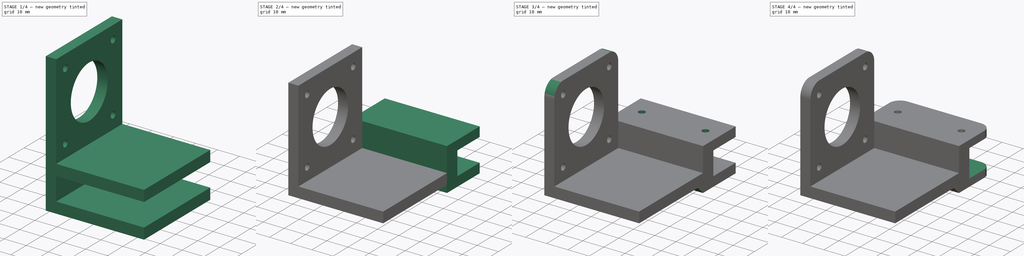
[diagram: build sequence overview — one tinted view per stage of 4, left to right]
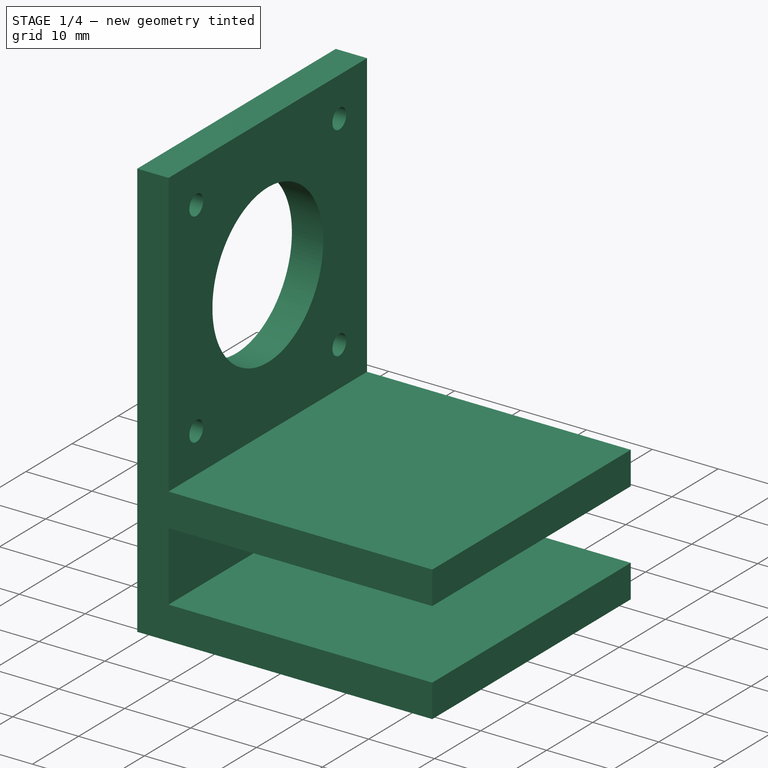
[diagram: stage 1 of 4 — iso view after this stage's code; geometry added in this stage tinted green]
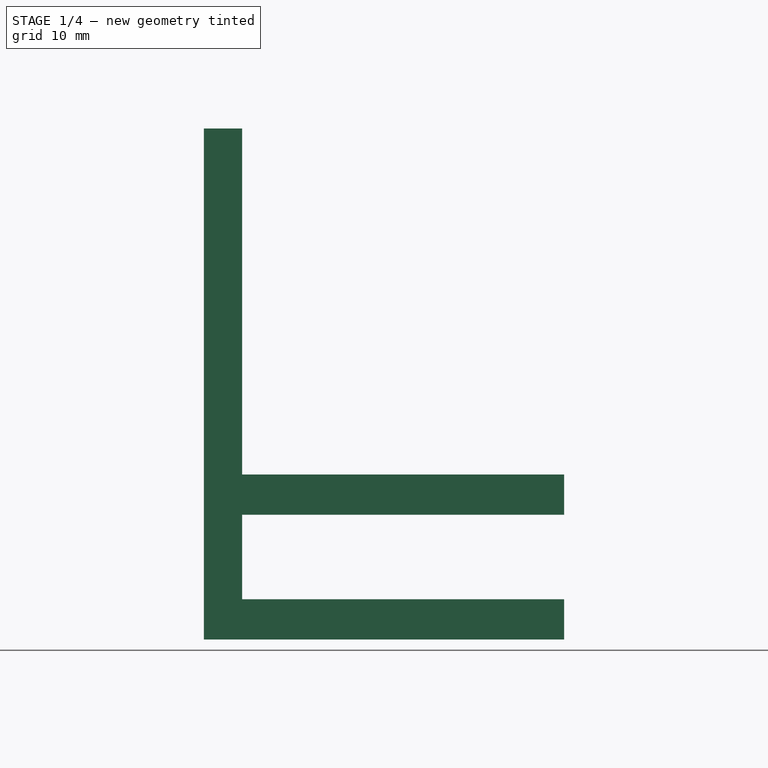
[diagram: stage 1 of 4 — front view after this stage's code; geometry added in this stage tinted green]
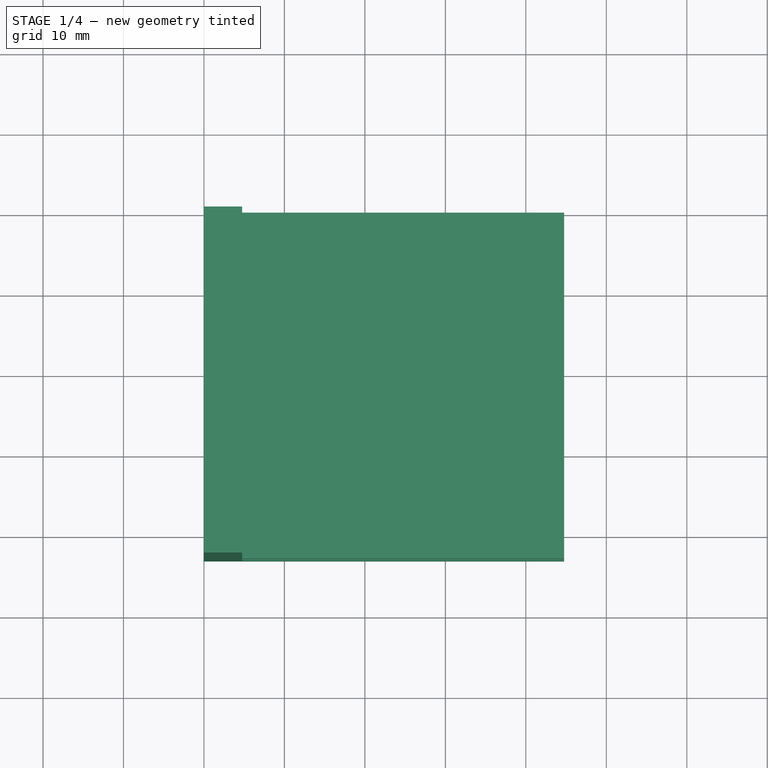
[diagram: stage 1 of 4 — top view after this stage's code; geometry added in this stage tinted green]
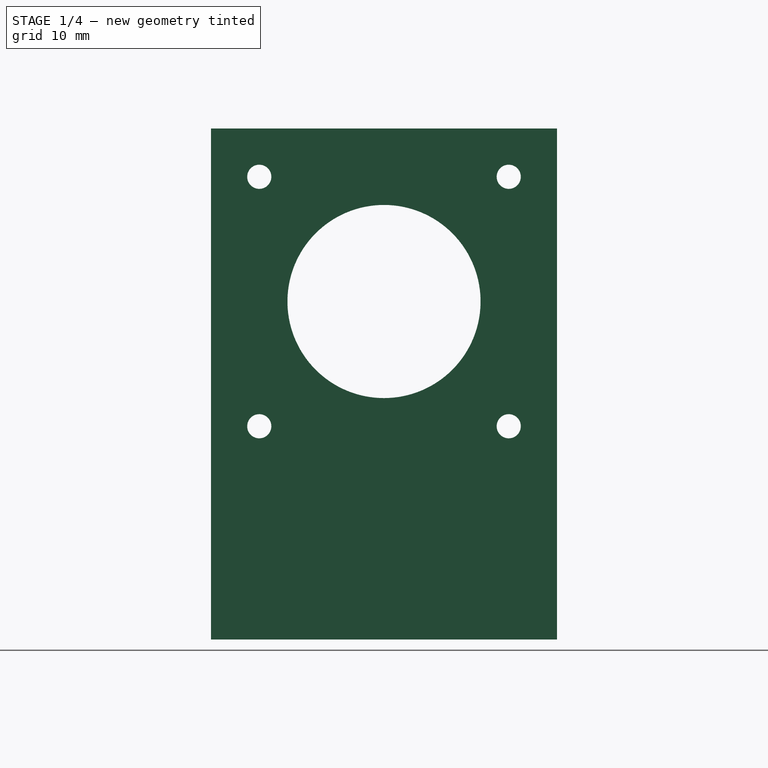
[diagram: stage 1 of 4 — right view after this stage's code; geometry added in this stage tinted green]
FCSTD DOCUMENT  (FreeCAD 1.0R39109 (Git))
Label: lock_motor
License: All rights reserved
LicenseURL: https://en.wikipedia.org/wiki/All_rights_reserved
objects: Sketcher::SketchObject×6, PartDesign::Pocket×4, PartDesign::Pad×3, PartDesign::Fillet×2, PartDesign::Chamfer×1, PartDesign::Body×1
note: 43 computed .brp shape members not serialized (recipe doc carries the construction recipe); baked Part::Feature solids carry a one-line shape summary decoded from their .brp

FEATURE [Sketcher::SketchObject] Sketch
  ArcFitTolerance = 1e-06
  AttachmentSupport = -> [XZ_Plane]
  FullyConstrained = true
  MakeInternals = false
  MapMode = 5
  Placement = pos=(0,0,0) rot=(1,0,0;1.5708rad)
  sketch-geometry (10):
    g0: LineSegment StartX=0 StartY=48 StartZ=0 EndX=0 EndY=-15.5 EndZ=0
    g1: LineSegment StartX=0 StartY=-15.5 StartZ=0 EndX=44.75 EndY=-15.5 EndZ=0
    g2: LineSegment StartX=44.75 StartY=-15.5 StartZ=0 EndX=44.75 EndY=-10.5 EndZ=0
    g3: LineSegment StartX=44.75 StartY=-10.5 StartZ=0 EndX=4.75 EndY=-10.5 EndZ=0
    g4: LineSegment StartX=4.75 StartY=-10.5 StartZ=0 EndX=4.75 EndY=0 EndZ=0
    g5: LineSegment StartX=4.75 StartY=0 StartZ=0 EndX=44.75 EndY=0 EndZ=0
    g6: LineSegment StartX=44.75 StartY=0 StartZ=0 EndX=44.75 EndY=5 EndZ=0
    g7: LineSegment StartX=44.75 StartY=5 StartZ=0 EndX=4.75 EndY=5 EndZ=0
    g8: LineSegment StartX=4.75 StartY=5 StartZ=0 EndX=4.75 EndY=48 EndZ=0
    g9: LineSegment StartX=4.75 StartY=48 StartZ=0 EndX=0 EndY=48 EndZ=0
  constraints (30):
    c: PointOnObject(g0,g-2)
    c: Vertical(g0)
    c: Coincident(g0,g1)
    c: Horizontal(g1)
    c: Coincident(g1,g2)
    c: Vertical(g2)
    c: Coincident(g2,g3)
    c: Horizontal(g3)
    c: Coincident(g3,g4)
    c: PointOnObject(g4,g-1)
    c: Vertical(g4)
    c: Coincident(g4,g5)
    c: PointOnObject(g5,g-1)
    c: Coincident(g5,g6)
    c: Vertical(g6)
    c: Coincident(g6,g7)
    c: Horizontal(g7)
    c: Coincident(g7,g8)
    c: Coincident(g8,g9)
    c: Coincident(g9,g0)
    c: Vertical(g8)
    c: Horizontal(g9)
    c: Equal(g2,g6)
    c: DistanceY(g4,g4) = 10.5
    c: Distance(g2,g2) = 5
    c: Vertical(g4,g7)
    c: DistanceX(g9,g9) = 4.75
    c: DistanceY(g8,g8) = 43
    c: DistanceX(g7,g7) = 40
    c: Vertical(g2,g5)
FEATURE [PartDesign::Pad] Pad
  Direction = (0,-1,2e-16)
  Length = 43
  Length2 = 10
  Placement = pos=(0,0,0) rot=(1,0,0;1.5708rad)
  Profile = -> Sketch
  ReferenceAxis = -> Sketch [N_Axis]
  Refine = true
  Suppressed = false
  Type = 0
FEATURE [Sketcher::SketchObject] Sketch001
  ArcFitTolerance = 1e-06
  FullyConstrained = true
  MakeInternals = false
  MapMode = 5
  Placement = pos=(4.75,0,0) rot=(0.707107,0,0.707107;3.14159rad)
  sketch-geometry (10):
    g0: Circle CenterX=26.5 CenterY=21.5 CenterZ=0 NormalX=0 NormalY=0 NormalZ=1 AngleXU=0 Radius=12
    g1: LineSegment [constr] StartX=11 StartY=37 StartZ=0 EndX=11 EndY=6 EndZ=0
    g2: LineSegment [constr] StartX=11 StartY=6 StartZ=0 EndX=42 EndY=6 EndZ=0
    g3: LineSegment [constr] StartX=42 StartY=6 StartZ=0 EndX=42 EndY=37 EndZ=0
    g4: LineSegment [constr] StartX=42 StartY=37 StartZ=0 EndX=11 EndY=37 EndZ=0
    g5: Circle CenterX=11 CenterY=6 CenterZ=0 NormalX=0 NormalY=0 NormalZ=1 AngleXU=0 Radius=1.5
    g6: Circle CenterX=11 CenterY=37 CenterZ=0 NormalX=0 NormalY=0 NormalZ=1 AngleXU=0 Radius=1.5
    g7: Circle CenterX=42 CenterY=37 CenterZ=0 NormalX=0 NormalY=0 NormalZ=1 AngleXU=0 Radius=1.5
    g8: Circle CenterX=42 CenterY=6 CenterZ=0 NormalX=0 NormalY=0 NormalZ=1 AngleXU=0 Radius=1.5
    g9: LineSegment [constr] StartX=0 StartY=45 StartZ=0 EndX=5 EndY=45 EndZ=0
  constraints (26):
    c: Coincident(g1,g2)
    c: Coincident(g2,g3)
    c: Coincident(g3,g4)
    c: Coincident(g4,g1)
    c: Vertical(g1)
    c: Vertical(g3)
    c: Horizontal(g2)
    c: Horizontal(g4)
    c: Coincident(g5,g1)
    c: Coincident(g6,g1)
    c: Coincident(g7,g3)
    c: Coincident(g8,g2)
    c: Equal(g8,g7)
    c: Equal(g7,g6)
    c: Equal(g6,g5)
    c: Diameter(g8) = 3
    c: Symmetric(g1,g2,g0)
    c: Equal(g3,g4)
    c: PointOnObject(g9,g-2)
    c: Horizontal(g9)
    c: DistanceX(g9,g9) = 5
    c: DistanceY(g-1,g9) = 45
    c: DistanceY(g-1,g0) = 21.5
    c: DistanceX(g2,g2) = 31
    c: Diameter(g0) = 24
    c: DistanceX(g9,g0) = 21.5
FEATURE [PartDesign::Pocket] Pocket
  BaseFeature = -> Pad
  Direction = (-1,0,2e-16)
  Length = 5
  Length2 = 5
  Placement = pos=(0,0,0) rot=(1,0,0;1.5708rad)
  Profile = -> Sketch001
  ReferenceAxis = -> Sketch001 [N_Axis]
  Refine = true
  Suppressed = false
  Type = 0
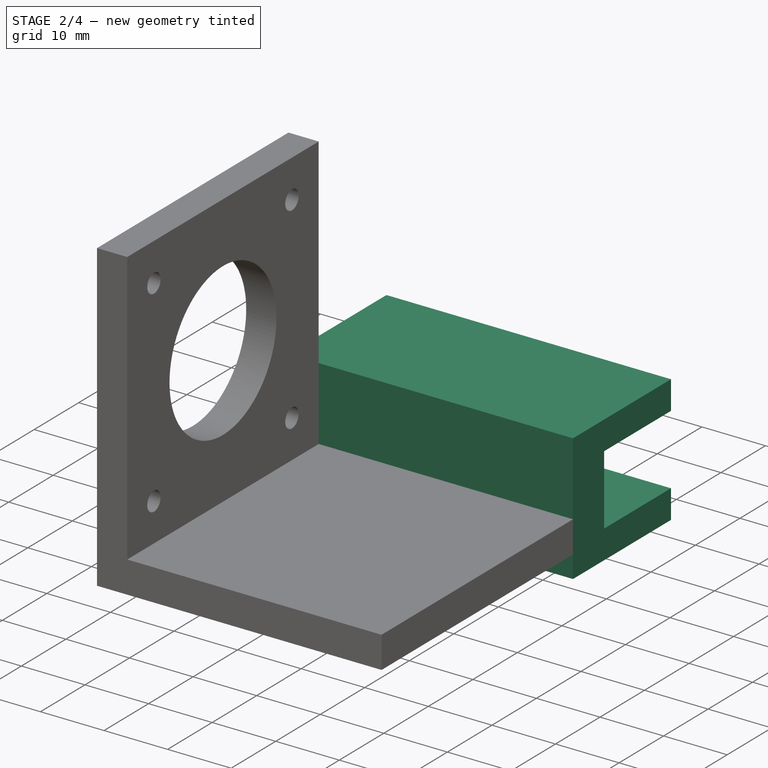
[diagram: stage 2 of 4 — iso view after this stage's code; geometry added in this stage tinted green]
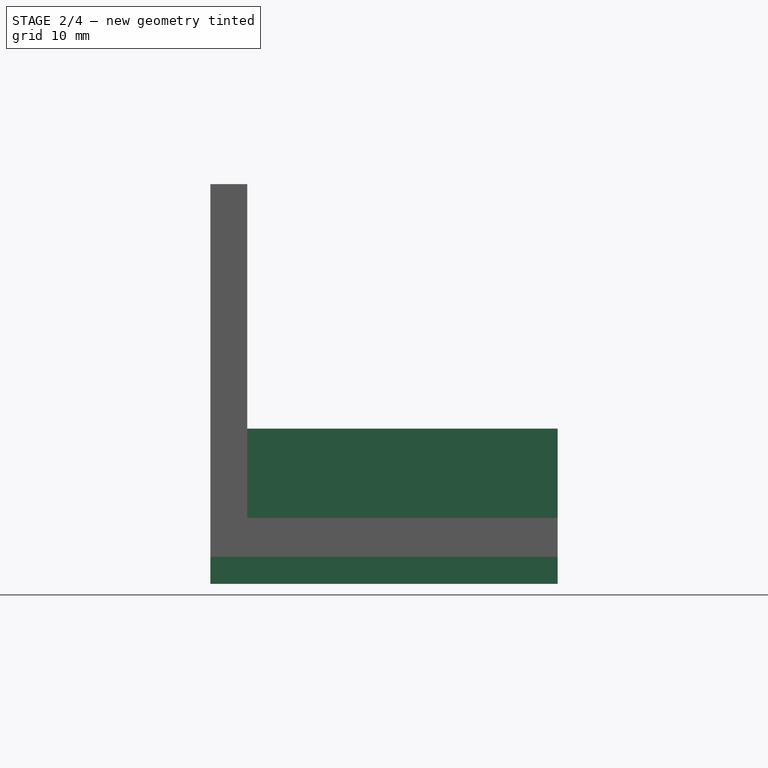
[diagram: stage 2 of 4 — front view after this stage's code; geometry added in this stage tinted green]
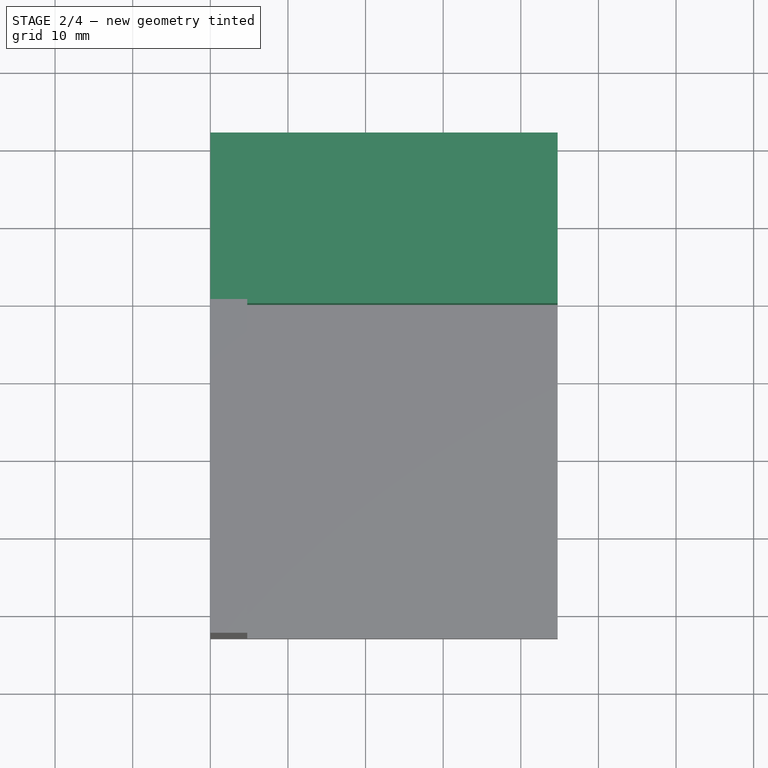
[diagram: stage 2 of 4 — top view after this stage's code; geometry added in this stage tinted green]
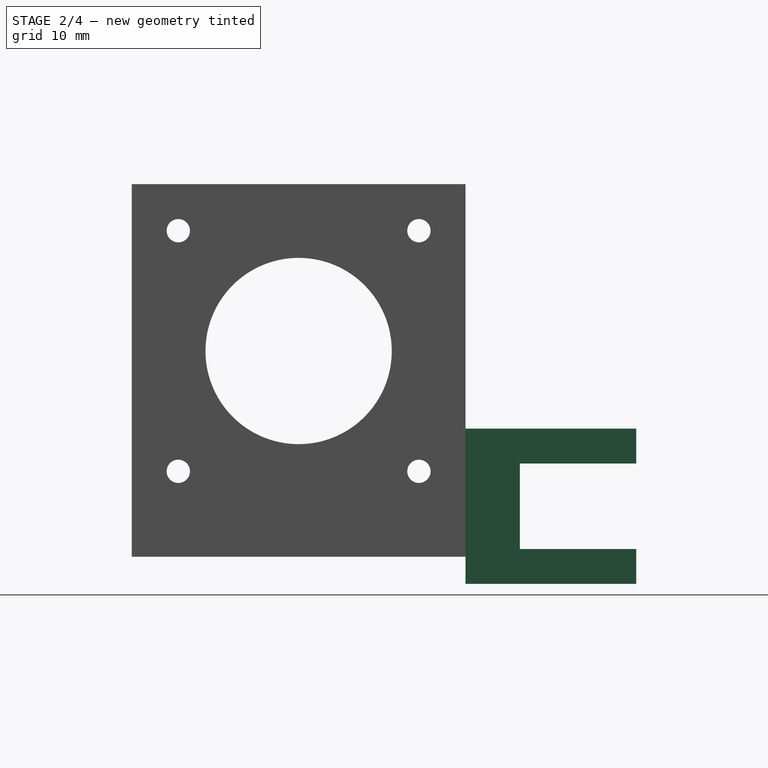
[diagram: stage 2 of 4 — right view after this stage's code; geometry added in this stage tinted green]
FEATURE [PartDesign::Pocket] Pocket001
  BaseFeature = -> Pocket
  Direction = (0,4e-16,1)
  Length = 15.5
  Length2 = 5
  Placement = pos=(0,0,0) rot=(1,0,0;1.5708rad)
  Profile = -> Pocket [Face5]
  Refine = true
  Suppressed = false
  Type = 0
FEATURE [Sketcher::SketchObject] Sketch002
  ArcFitTolerance = 1e-06
  AttachmentSupport = -> [Pocket001]
  FullyConstrained = true
  MakeInternals = false
  MapMode = 5
  Placement = pos=(0,1e-15,0) rot=(-1,0,0;1.5708rad)
  sketch-geometry (6):
    g0: LineSegment [constr] StartX=-10 StartY=-5 StartZ=0 EndX=-10 EndY=-48 EndZ=0
    g1: LineSegment [constr] StartX=50 StartY=0 StartZ=0 EndX=50 EndY=-15 EndZ=0
    g2: LineSegment StartX=0 StartY=3.5 StartZ=0 EndX=0 EndY=-16.5 EndZ=0
    g3: LineSegment StartX=0 StartY=-16.5 StartZ=0 EndX=44.75 EndY=-16.5 EndZ=0
    g4: LineSegment StartX=44.75 StartY=-16.5 StartZ=0 EndX=44.75 EndY=3.5 EndZ=0
    g5: LineSegment StartX=44.75 StartY=3.5 StartZ=0 EndX=0 EndY=3.5 EndZ=0
  constraints (20):
    c: Vertical(g0)
    c: DistanceX(g0,g-1) = 10
    c: DistanceY(g0,g0) = 43
    c: PointOnObject(g1,g-1)
    c: Vertical(g1)
    c: DistanceY(g1,g1) = 15
    c: DistanceX(g-1,g1) = 50
    c: DistanceY(g0,g-1) = 5
    c: Coincident(g2,g3)
    c: Coincident(g3,g4)
    c: Coincident(g4,g5)
    c: Coincident(g5,g2)
    c: Vertical(g2)
    c: Vertical(g4)
    c: Horizontal(g3)
    c: Horizontal(g5)
    c: PointOnObject(g2,g-2)
    c: DistanceX(g5,g5) = 44.75
    c: DistanceY(g3,g-1) = 16.5
    c: DistanceY(g4,g4) = 20
FEATURE [PartDesign::Pad] Pad001
  BaseFeature = -> Pocket001
  Direction = (0,1,2e-16)
  Length = 7
  Length2 = 10
  Placement = pos=(0,0,0) rot=(1,0,0;1.5708rad)
  Profile = -> Sketch002
  ReferenceAxis = -> Sketch002 [N_Axis]
  Refine = true
  Suppressed = false
  Type = 0
FEATURE [Sketcher::SketchObject] Sketch003
  ArcFitTolerance = 1e-06
  AttachmentSupport = -> [Pad001]
  FullyConstrained = true
  MakeInternals = false
  MapMode = 5
  Placement = pos=(0,7,0) rot=(-1,0,0;1.5708rad)
  sketch-geometry (8):
    g0: LineSegment StartX=0 StartY=-16.5 StartZ=0 EndX=44.75 EndY=-16.5 EndZ=0
    g1: LineSegment StartX=44.75 StartY=-16.5 StartZ=0 EndX=44.75 EndY=-12 EndZ=0
    g2: LineSegment StartX=44.75 StartY=-12 StartZ=0 EndX=0 EndY=-12 EndZ=0
    g3: LineSegment StartX=0 StartY=-12 StartZ=0 EndX=0 EndY=-16.5 EndZ=0
    g4: LineSegment StartX=0 StartY=3.5 StartZ=0 EndX=0 EndY=-1 EndZ=0
    g5: LineSegment StartX=0 StartY=-1 StartZ=0 EndX=44.75 EndY=-1 EndZ=0
    g6: LineSegment StartX=44.75 StartY=-1 StartZ=0 EndX=44.75 EndY=3.5 EndZ=0
    g7: LineSegment StartX=44.75 StartY=3.5 StartZ=0 EndX=0 EndY=3.5 EndZ=0
  constraints (24):
    c: Coincident(g0,g1)
    c: Coincident(g1,g2)
    c: Coincident(g2,g3)
    c: Coincident(g3,g0)
    c: Horizontal(g0)
    c: Horizontal(g2)
    c: Vertical(g1)
    c: Vertical(g3)
    c: PointOnObject(g0,g-2)
    c: DistanceY(g0,g-1) = 16.5
    c: DistanceY(g3,g3) = 4.5
    c: Coincident(g4,g5)
    c: Coincident(g5,g6)
    c: Coincident(g6,g7)
    c: Coincident(g7,g4)
    c: Vertical(g4)
    c: Vertical(g6)
    c: Horizontal(g5)
    c: Horizontal(g7)
    c: PointOnObject(g4,g-2)
    c: Equal(g5,g2)
    c: Equal(g4,g3)
    c: DistanceY(g2,g4) = 11
    c: DistanceX(g7,g7) = 44.75
FEATURE [PartDesign::Pad] Pad002
  BaseFeature = -> Pad001
  Direction = (0,1,2e-16)
  Length = 15
  Length2 = 10
  Placement = pos=(0,0,0) rot=(1,0,0;1.5708rad)
  Profile = -> Sketch003
  ReferenceAxis = -> Sketch003 [N_Axis]
  Refine = true
  Suppressed = false
  Type = 0
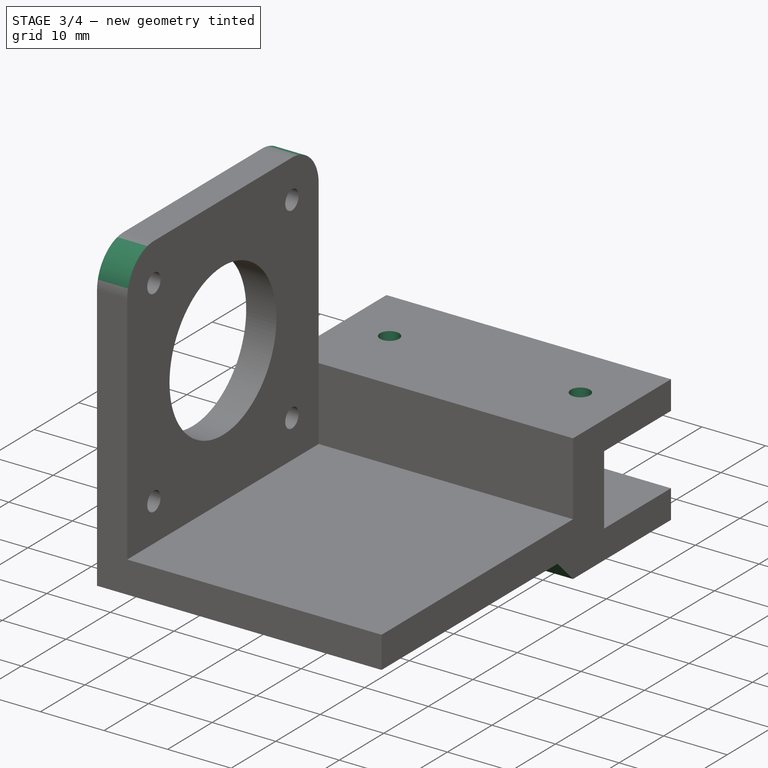
[diagram: stage 3 of 4 — iso view after this stage's code; geometry added in this stage tinted green]
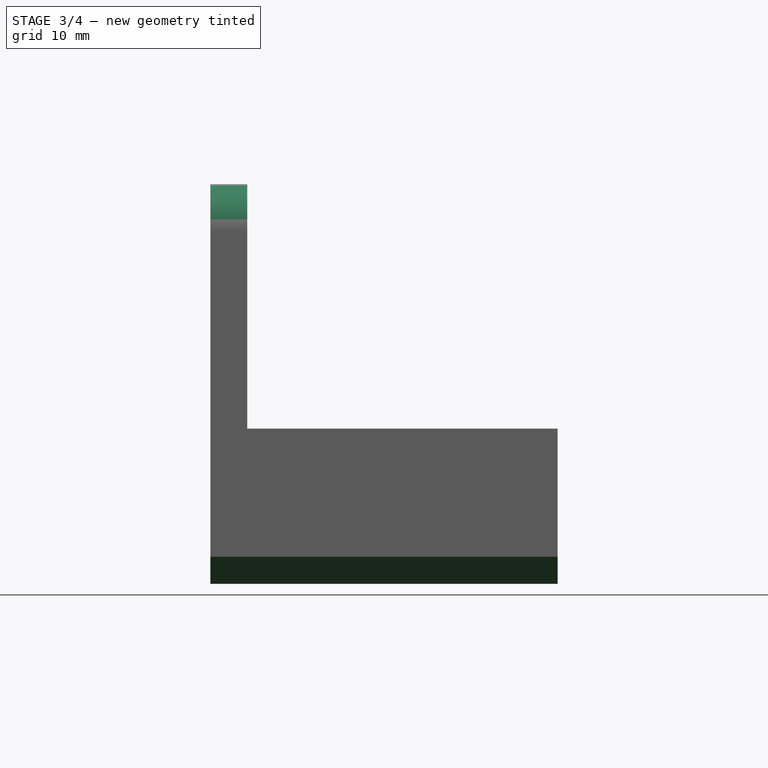
[diagram: stage 3 of 4 — front view after this stage's code; geometry added in this stage tinted green]
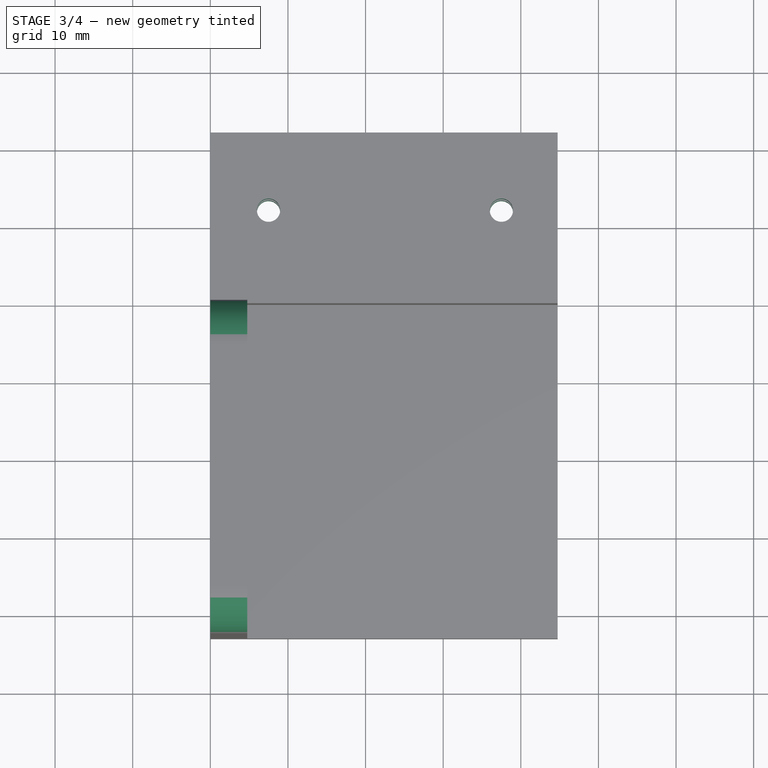
[diagram: stage 3 of 4 — top view after this stage's code; geometry added in this stage tinted green]
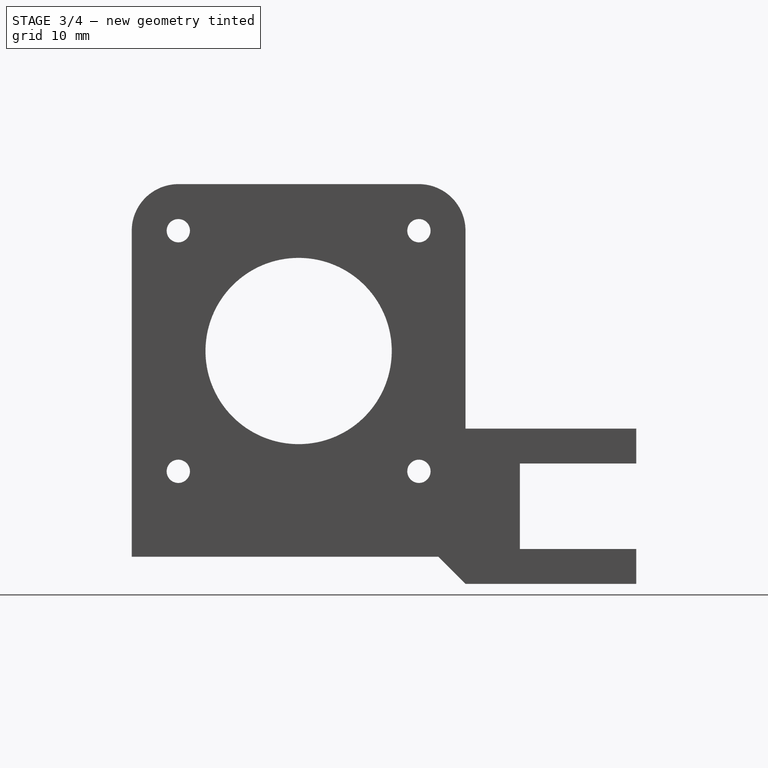
[diagram: stage 3 of 4 — right view after this stage's code; geometry added in this stage tinted green]
FEATURE [Sketcher::SketchObject] Sketch004
  ArcFitTolerance = 1e-06
  AttachmentSupport = -> [Pad002]
  FullyConstrained = true
  MakeInternals = false
  MapMode = 5
  Placement = pos=(0,0,16.5) rot=(0,0,1;3.14159rad)
  sketch-geometry (3):
    g0: LineSegment [constr] StartX=-50 StartY=-22 StartZ=0 EndX=-50 EndY=0 EndZ=0
    g1: Circle CenterX=-37.5 CenterY=-12 CenterZ=0 NormalX=0 NormalY=0 NormalZ=1 AngleXU=0 Radius=1.5
    g2: Circle CenterX=-7.5 CenterY=-12 CenterZ=0 NormalX=0 NormalY=0 NormalZ=1 AngleXU=0 Radius=1.5
  constraints (10):
    c: PointOnObject(g0,g-1)
    c: Vertical(g0)
    c: DistanceY(g0,g0) = 22
    c: DistanceX(g0,g-1) = 50
    c: Horizontal(g1,g2)
    c: Equal(g1,g2)
    c: DistanceX(g1,g2) = 30
    c: DistanceX(g2,g-1) = 7.5
    c: Diameter(g2) = 3
    c: DistanceY(g1,g0) = 12
FEATURE [PartDesign::Pocket] Pocket002
  BaseFeature = -> Pad002
  Direction = (0,0,-1)
  Length = 5
  Length2 = 5
  Placement = pos=(0,0,0) rot=(1,0,0;1.5708rad)
  Profile = -> Sketch004
  ReferenceAxis = -> Sketch004 [N_Axis]
  Refine = true
  Suppressed = false
  Type = 1
FEATURE [PartDesign::Chamfer] Chamfer
  Angle = 45
  Base = -> Pocket002 [Edge55]
  BaseFeature = -> Pocket002
  ChamferType = 0
  FlipDirection = false
  Placement = pos=(0,0,0) rot=(1,0,0;1.5708rad)
  Refine = true
  Size = 3.49
  Size2 = 1
  SupportTransform = false
  Suppressed = false
  UseAllEdges = false
FEATURE [PartDesign::Fillet] Fillet
  Base = -> Chamfer [Edge35,Edge41]
  BaseFeature = -> Chamfer
  Placement = pos=(0,0,0) rot=(1,0,0;1.5708rad)
  Radius = 6
  Refine = true
  SupportTransform = false
  Suppressed = false
  UseAllEdges = false
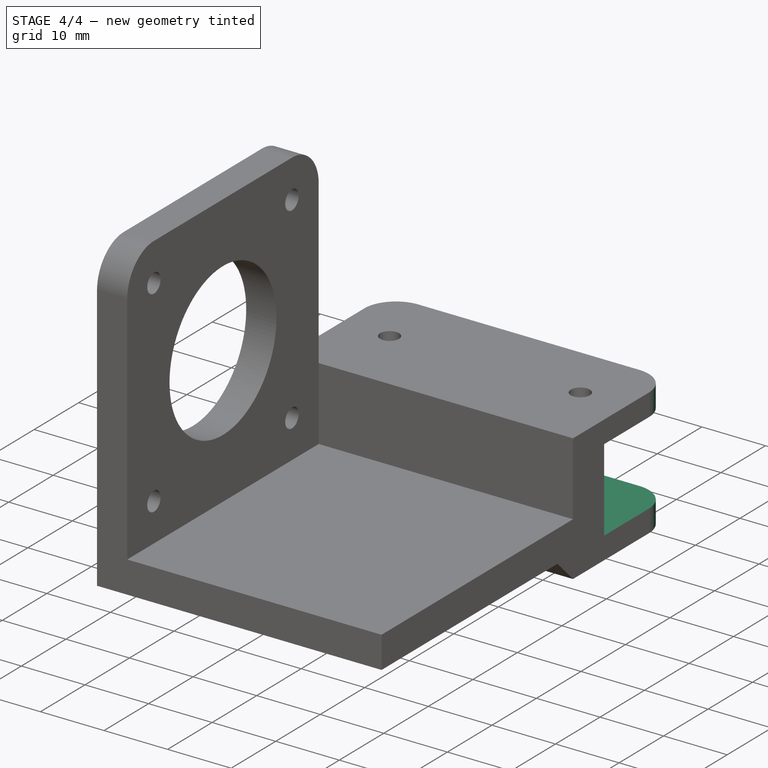
[diagram: stage 4 of 4 — iso view after this stage's code; geometry added in this stage tinted green]
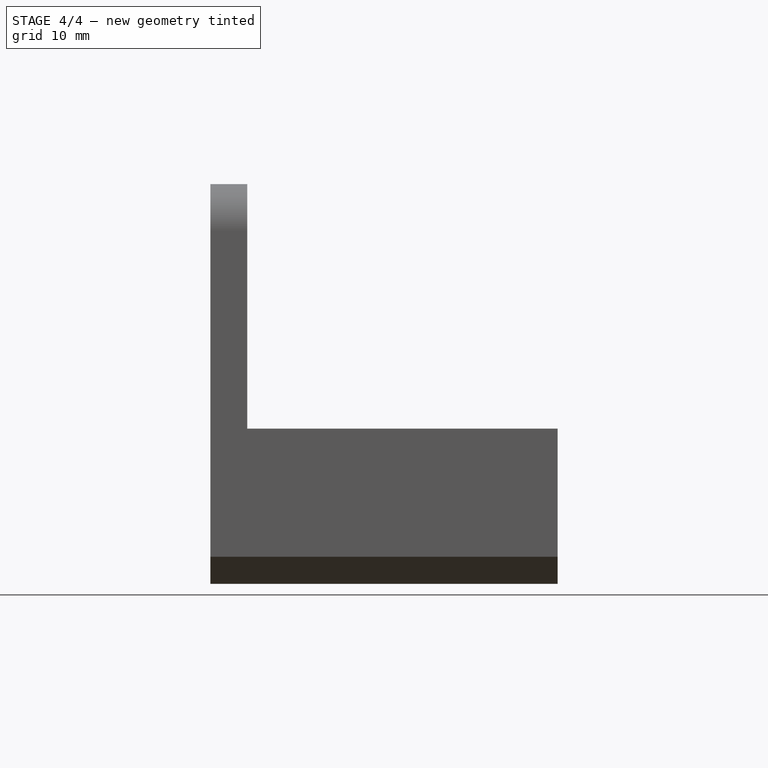
[diagram: stage 4 of 4 — front view after this stage's code; geometry added in this stage tinted green]
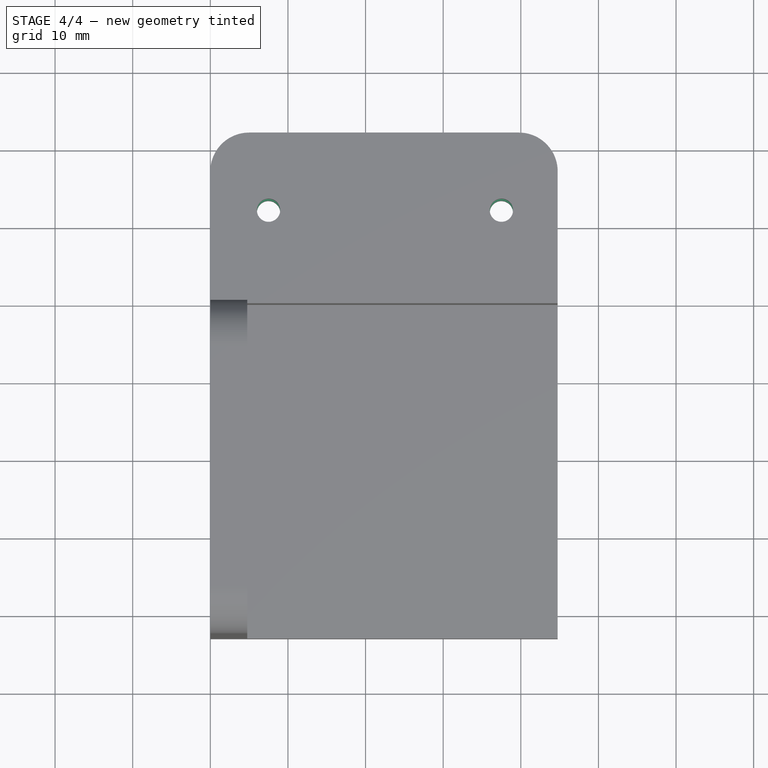
[diagram: stage 4 of 4 — top view after this stage's code; geometry added in this stage tinted green]
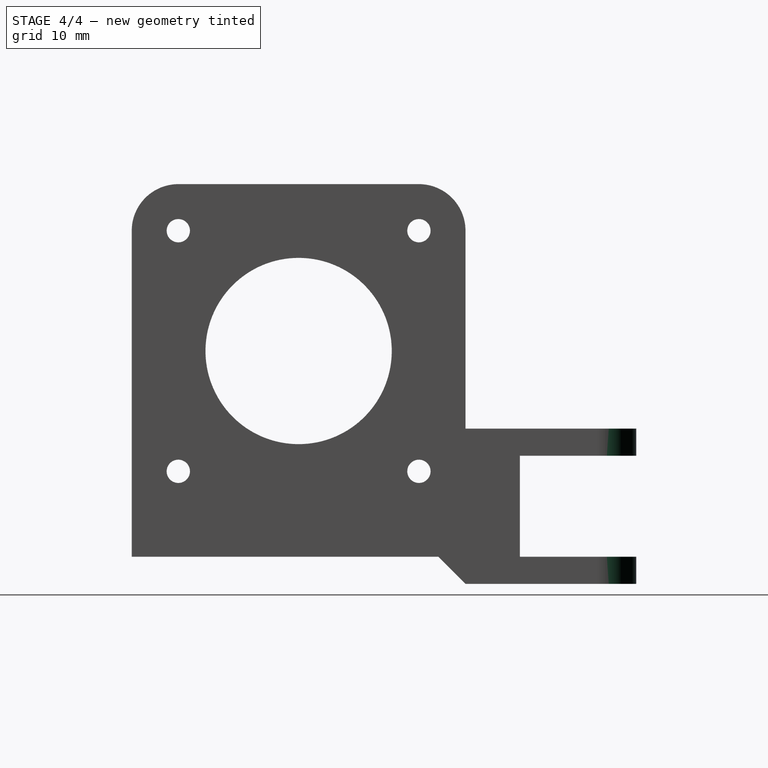
[diagram: stage 4 of 4 — right view after this stage's code; geometry added in this stage tinted green]
FEATURE [PartDesign::Fillet] Fillet001
  Base = -> Fillet [Edge12,Edge11,Edge51,Edge50]
  BaseFeature = -> Fillet
  Placement = pos=(0,0,0) rot=(1,0,0;1.5708rad)
  Radius = 5
  Refine = true
  SupportTransform = false
  Suppressed = false
  UseAllEdges = false
FEATURE [Sketcher::SketchObject] Sketch005
  ArcFitTolerance = 1e-06
  AttachmentSupport = -> [Fillet001]
  FullyConstrained = true
  MakeInternals = false
  MapMode = 5
  Placement = pos=(0,22,5.1e-15) rot=(-1,0,0;1.5708rad)
  sketch-geometry (4):
    g0: LineSegment StartX=0 StartY=0 StartZ=0 EndX=0 EndY=-13 EndZ=0
    g1: LineSegment StartX=0 StartY=-13 StartZ=0 EndX=48.7 EndY=-13 EndZ=0
    g2: LineSegment StartX=48.7 StartY=-13 StartZ=0 EndX=48.7 EndY=0 EndZ=0
    g3: LineSegment StartX=48.7 StartY=0 StartZ=0 EndX=0 EndY=0 EndZ=0
  constraints (12):
    c: Coincident(g0,g1)
    c: Coincident(g1,g2)
    c: Coincident(g2,g3)
    c: Coincident(g3,g0)
    c: Vertical(g0)
    c: Vertical(g2)
    c: Horizontal(g1)
    c: Horizontal(g3)
    c: PointOnObject(g0,g-2)
    c: DistanceY(g2,g2) = 13
    c: DistanceX(g3,g3) = 48.7
    c: DistanceY(g0,g-1) = 0
FEATURE [PartDesign::Pocket] Pocket003
  BaseFeature = -> Fillet001
  Direction = (0,-1,-2e-16)
  Length = 15
  Length2 = 5
  Placement = pos=(0,0,0) rot=(1,0,0;1.5708rad)
  Profile = -> Sketch005
  ReferenceAxis = -> Sketch005 [N_Axis]
  Refine = true
  Suppressed = false
  Type = 0
FEATURE [PartDesign::Body] Body
  AllowCompound = false
  Group = -> [Sketch,Pad,Sketch001,Pocket,Pocket001,Sketch002,Pad001,Sketch003,Pad002,Sketch004,Pocket002,Chamfer,Fillet,Fillet001,Sketch005,Pocket003]
  Origin = -> Origin
  Tip = -> Pocket003
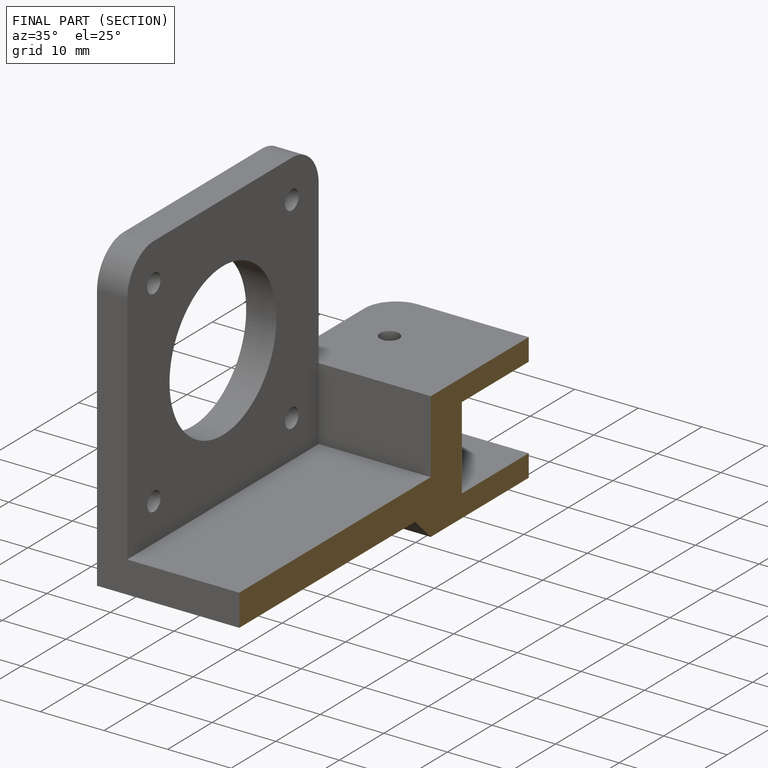
[diagram: finished part — half-section view (interior)]
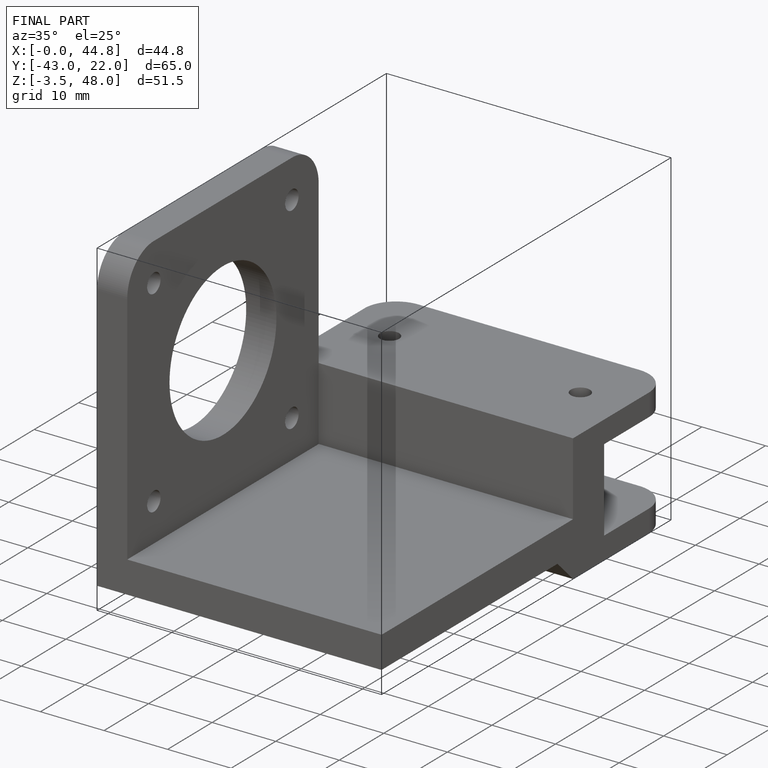
[diagram: finished part — iso view with bounding-box wireframe]
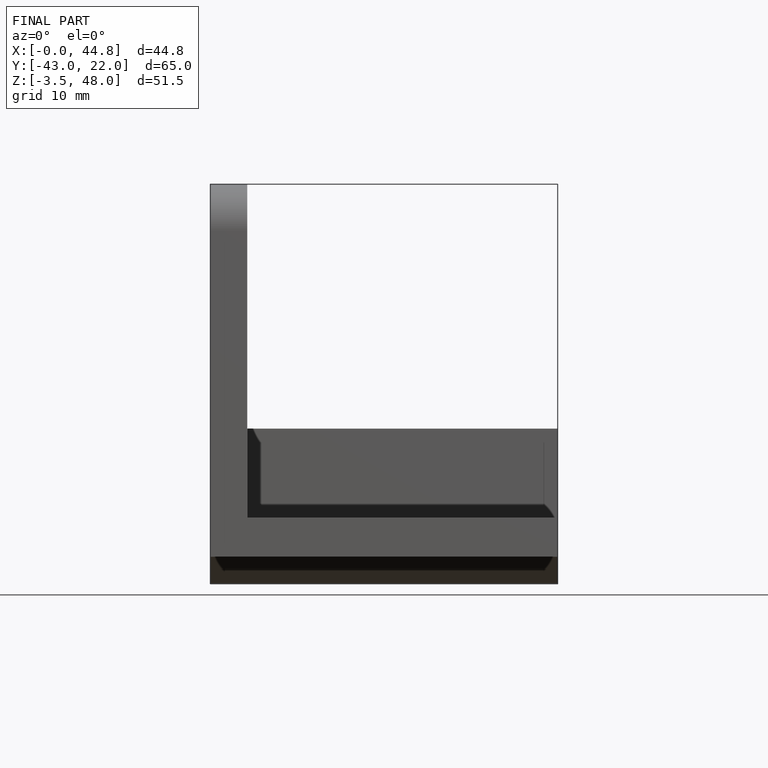
[diagram: finished part — front view with bounding-box wireframe]
